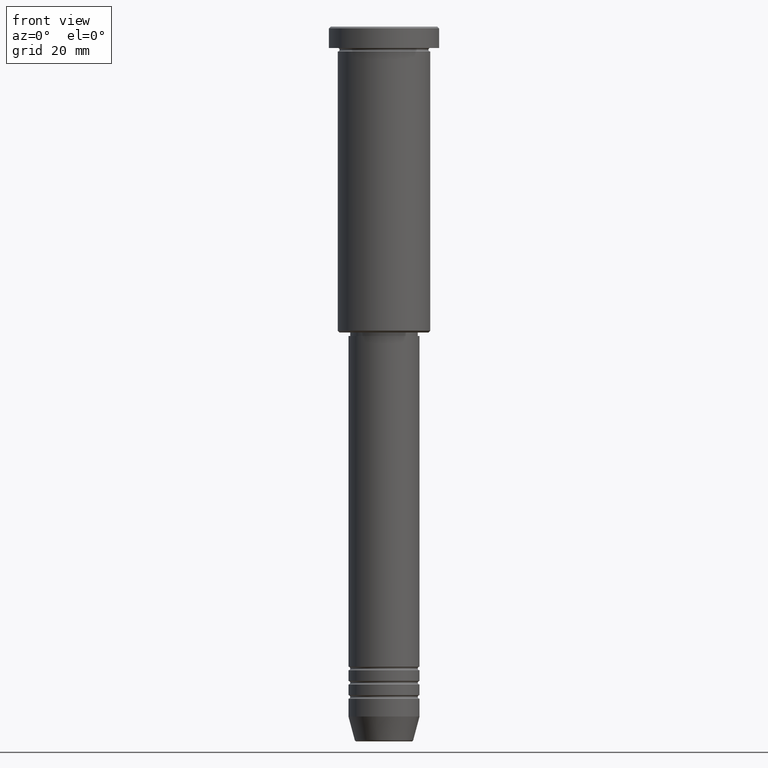
[diagram: clean part render]
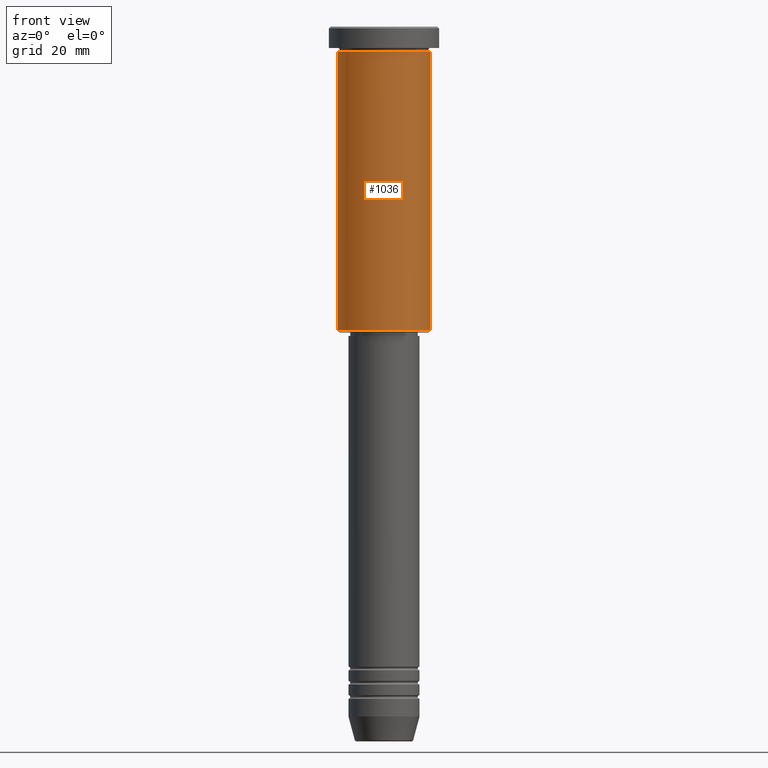
[diagram: same view with one face highlighted and labeled with its STEP entity id]
A machine part, front view. The second image highlights one B-rep face of the part: STEP entity #1036.
In plain terms, the highlighted cylindrical surface (partial cylindrical patch) has radius 13 mm, axis along (-0, -0, 1).
Its self-contained STEP definition (entity closure, byte-faithful):
#2 = CARTESIAN_POINT ( 'NONE',  ( -13.00000000000000178, 1.592040838891559293E-15, -85.50000000000007105 ) ) ;
#25 = CARTESIAN_POINT ( 'NONE',  ( 0.000000000000000000, 0.000000000000000000, -85.50000000000007105 ) ) ;
#26 = VERTEX_POINT ( 'NONE', #991 ) ;
#98 = CIRCLE ( 'NONE', #1033, 13.00000000000000178 ) ;
#251 = VECTOR ( 'NONE', #989, 1000.000000000000000 ) ;
#255 = CARTESIAN_POINT ( 'NONE',  ( -13.00000000000000178, 1.592040838891559293E-15, 0.000000000000000000 ) ) ;
#342 = VECTOR ( 'NONE', #1167, 1000.000000000000000 ) ;
#346 = DIRECTION ( 'NONE',  ( 1.000000000000000000, 0.000000000000000000, 0.000000000000000000 ) ) ;
#366 = EDGE_CURVE ( 'NONE', #1065, #765, #98, .T. ) ;
#397 = DIRECTION ( 'NONE',  ( -0.000000000000000000, -0.000000000000000000, 1.000000000000000000 ) ) ;
#434 = CARTESIAN_POINT ( 'NONE',  ( 0.000000000000000000, 0.000000000000000000, 0.000000000000000000 ) ) ;
#442 = EDGE_CURVE ( 'NONE', #531, #1065, #996, .T. ) ;
#455 = CIRCLE ( 'NONE', #662, 13.00000000000000178 ) ;
#459 = LINE ( 'NONE', #737, #342 ) ;
#472 = AXIS2_PLACEMENT_3D ( 'NONE', #434, #1158, #346 ) ;
#515 = DIRECTION ( 'NONE',  ( 1.000000000000000000, 0.000000000000000000, 0.000000000000000000 ) ) ;
#531 = VERTEX_POINT ( 'NONE', #2 ) ;
#533 = ORIENTED_EDGE ( 'NONE', *, *, #793, .T. ) ;
#662 = AXIS2_PLACEMENT_3D ( 'NONE', #25, #397, #758 ) ;
#723 = CARTESIAN_POINT ( 'NONE',  ( -13.00000000000000178, 1.592040838891559293E-15, -6.999999999999995559 ) ) ;
#737 = CARTESIAN_POINT ( 'NONE',  ( 13.00000000000000178, 0.000000000000000000, 0.000000000000000000 ) ) ;
#758 = DIRECTION ( 'NONE',  ( -1.000000000000000000, 0.000000000000000000, 0.000000000000000000 ) ) ;
#765 = VERTEX_POINT ( 'NONE', #829 ) ;
#782 = FACE_OUTER_BOUND ( 'NONE', #1105, .T. ) ;
#793 = EDGE_CURVE ( 'NONE', #26, #765, #459, .T. ) ;
#829 = CARTESIAN_POINT ( 'NONE',  ( 13.00000000000000178, 0.000000000000000000, -6.999999999999995559 ) ) ;
#836 = ORIENTED_EDGE ( 'NONE', *, *, #442, .F. ) ;
#929 = EDGE_CURVE ( 'NONE', #531, #26, #455, .T. ) ;
#964 = CYLINDRICAL_SURFACE ( 'NONE', #472, 13.00000000000000178 ) ;
#967 = CARTESIAN_POINT ( 'NONE',  ( 0.000000000000000000, 0.000000000000000000, -6.999999999999995559 ) ) ;
#989 = DIRECTION ( 'NONE',  ( -0.000000000000000000, -0.000000000000000000, 1.000000000000000000 ) ) ;
#991 = CARTESIAN_POINT ( 'NONE',  ( 13.00000000000000178, 0.000000000000000000, -85.50000000000007105 ) ) ;
#996 = LINE ( 'NONE', #255, #251 ) ;
#1033 = AXIS2_PLACEMENT_3D ( 'NONE', #967, #1132, #515 ) ;
#1036 = ADVANCED_FACE ( 'NONE', ( #782 ), #964, .T. ) ;
#1065 = VERTEX_POINT ( 'NONE', #723 ) ;
#1072 = ORIENTED_EDGE ( 'NONE', *, *, #929, .T. ) ;
#1105 = EDGE_LOOP ( 'NONE', ( #836, #1072, #533, #1120 ) ) ;
#1120 = ORIENTED_EDGE ( 'NONE', *, *, #366, .F. ) ;
#1132 = DIRECTION ( 'NONE',  ( -0.000000000000000000, -0.000000000000000000, 1.000000000000000000 ) ) ;
#1158 = DIRECTION ( 'NONE',  ( -0.000000000000000000, -0.000000000000000000, 1.000000000000000000 ) ) ;
#1167 = DIRECTION ( 'NONE',  ( -0.000000000000000000, -0.000000000000000000, 1.000000000000000000 ) ) ;